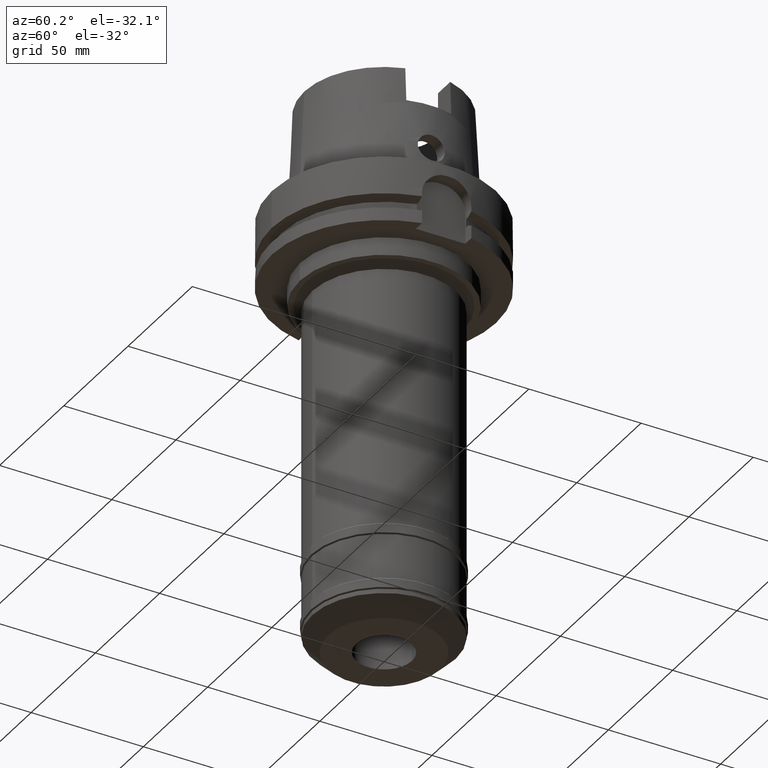
[diagram: clean part render]
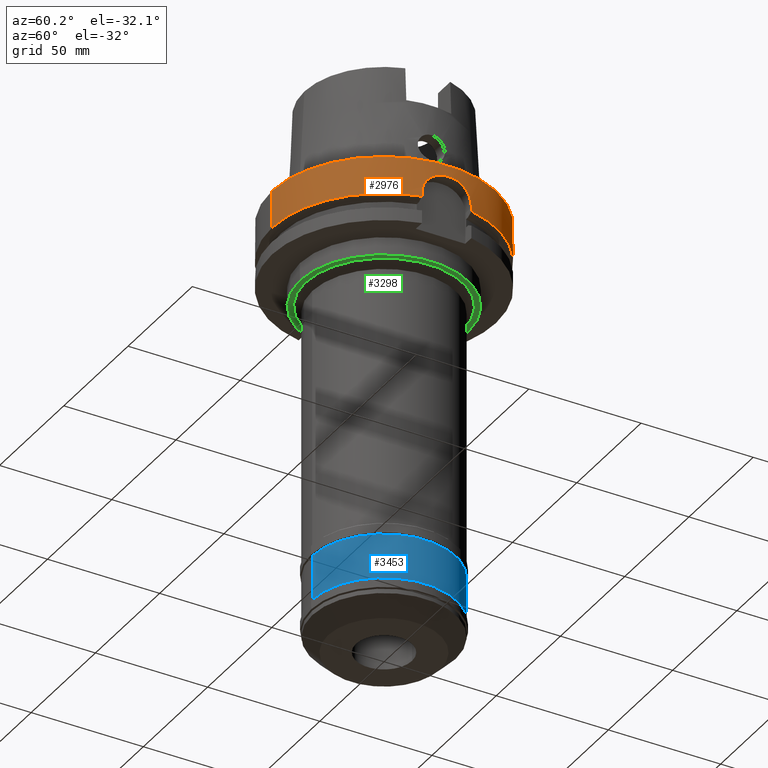
[diagram: same view with three faces highlighted in distinct colors, each labeled with its STEP entity id]
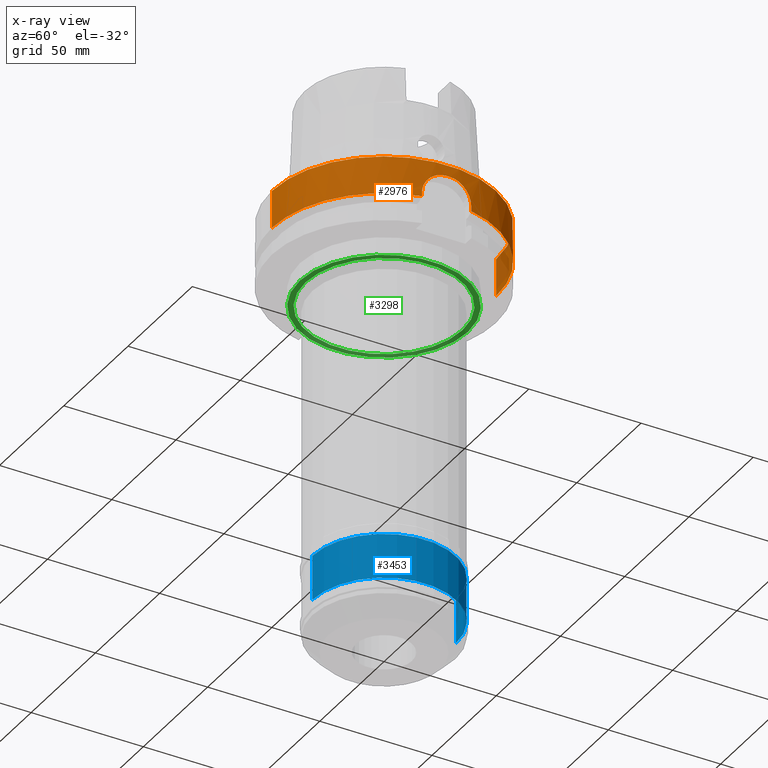
[diagram: x-ray of the same camera — body ghosted, the three highlighted faces saturated]
A machine part, auxiliary view with three faces highlighted in distinct colors.
The next image is the same camera in x-ray (body ghosted, the three faces saturated) — at least one of them is partly hidden behind the body in this view.
Their STEP definitions:

[orange] entity #2976 — the highlighted cylindrical surface (partial cylindrical patch) has radius 50 mm, axis along (0, 0, 1).
#350=CARTESIAN_POINT('',(0.E0,0.E0,0.E0));
#351=DIRECTION('',(0.E0,0.E0,-1.E0));
#352=DIRECTION('',(0.E0,1.E0,0.E0));
#353=AXIS2_PLACEMENT_3D('',#350,#351,#352);
#381=DIRECTION('',(0.E0,2.969006079282E-14,-1.E0));
#382=VECTOR('',#381,1.675240473581E1);
#383=CARTESIAN_POINT('',(0.E0,-5.E1,0.E0));
#384=LINE('',#383,#382);
#798=CARTESIAN_POINT('',(0.E0,0.E0,-1.675240473581E1));
#799=DIRECTION('',(0.E0,0.E0,1.E0));
#800=DIRECTION('',(0.E0,-1.E0,0.E0));
#801=AXIS2_PLACEMENT_3D('',#798,#799,#800);
#816=CARTESIAN_POINT('',(4.998999899980E1,-1.E0,-5.E0));
#817=CARTESIAN_POINT('',(4.997503460282E1,-1.748070190201E0,-5.E0));
#818=CARTESIAN_POINT('',(4.991285883830E1,-3.210048101398E0,-5.162508306837E0));
#819=CARTESIAN_POINT('',(4.972639841187E1,-5.358520384944E0,-5.904792639431E0));
#820=CARTESIAN_POINT('',(4.947876344009E1,-7.274062207197E0,-7.105041065339E0));
#821=CARTESIAN_POINT('',(4.921271411627E1,-8.876558450623E0,-8.703010222550E0));
#822=CARTESIAN_POINT('',(4.897599990577E1,-1.008359438901E1,-1.061591949854E1));
#823=CARTESIAN_POINT('',(4.881260139375E1,-1.083536034362E1,-1.277572651514E1));
#824=CARTESIAN_POINT('',(4.877499359303E1,-1.1E1,-1.424604735720E1));
#825=CARTESIAN_POINT('',(4.877499359303E1,-1.1E1,-1.5E1));
#830=DIRECTION('',(-5.027793947017E-13,6.690209687563E-14,-1.E0));
#831=VECTOR('',#830,1.752404735809E0);
#832=CARTESIAN_POINT('',(4.877499359303E1,-1.1E1,-1.5E1));
#833=LINE('',#832,#831);
#837=DIRECTION('',(0.E0,-2.969006079282E-14,-1.E0));
#838=VECTOR('',#837,1.675240473581E1);
#839=CARTESIAN_POINT('',(0.E0,5.E1,0.E0));
#840=LINE('',#839,#838);
#844=DIRECTION('',(4.946700496259E-13,7.095676941355E-14,1.E0));
#845=VECTOR('',#844,1.752404735809E0);
#846=CARTESIAN_POINT('',(4.877499359303E1,1.1E1,-1.675240473581E1));
#847=LINE('',#846,#845);
#851=CARTESIAN_POINT('',(4.877499359303E1,1.1E1,-1.5E1));
#852=CARTESIAN_POINT('',(4.877499359303E1,1.1E1,-1.425405366469E1));
#853=CARTESIAN_POINT('',(4.881182119002E1,1.083873753341E1,-1.279702685514E1));
#854=CARTESIAN_POINT('',(4.897268272064E1,1.009923672888E1,-1.065074173612E1));
#855=CARTESIAN_POINT('',(4.920740341221E1,8.905300469171E0,-8.739736716407E0));
#856=CARTESIAN_POINT('',(4.947305233912E1,7.312272479331E0,-7.135461040488E0));
#857=CARTESIAN_POINT('',(4.972221230915E1,5.397924792666E0,-5.922868696542E0));
#858=CARTESIAN_POINT('',(4.991139941789E1,3.236935530369E0,-5.167019104562E0));
#859=CARTESIAN_POINT('',(4.997482707449E1,1.758444531014E0,-5.E0));
#860=CARTESIAN_POINT('',(4.998999899980E1,1.E0,-5.E0));
#865=CARTESIAN_POINT('',(0.E0,0.E0,-5.E0));
#866=DIRECTION('',(0.E0,0.E0,1.E0));
#867=DIRECTION('',(9.997999799960E-1,-2.E-2,0.E0));
#868=AXIS2_PLACEMENT_3D('',#865,#866,#867);
#1113=CARTESIAN_POINT('',(4.877499359303E1,1.1E1,-1.675240473581E1));
#1118=CARTESIAN_POINT('',(0.E0,0.E0,-1.675240473581E1));
#1119=DIRECTION('',(0.E0,0.E0,1.E0));
#1120=DIRECTION('',(9.754998718606E-1,2.2E-1,0.E0));
#1121=AXIS2_PLACEMENT_3D('',#1118,#1119,#1120);
#2162=CARTESIAN_POINT('',(0.E0,-5.E1,0.E0));
#2163=CARTESIAN_POINT('',(0.E0,5.E1,0.E0));
#2164=VERTEX_POINT('',#2162);
#2165=VERTEX_POINT('',#2163);
#2170=CARTESIAN_POINT('',(0.E0,5.E1,-1.675240473581E1));
#2171=VERTEX_POINT('',#2170);
#2172=CARTESIAN_POINT('',(0.E0,-5.E1,-1.675240473581E1));
#2173=VERTEX_POINT('',#2172);
#2339=CARTESIAN_POINT('',(4.877499359303E1,-1.1E1,-1.675240473581E1));
#2340=VERTEX_POINT('',#2339);
#2348=VERTEX_POINT('',#1113);
#2401=CARTESIAN_POINT('',(4.877499359303E1,-1.1E1,-1.5E1));
#2402=VERTEX_POINT('',#2401);
#2405=CARTESIAN_POINT('',(4.998999899980E1,-1.E0,-5.E0));
#2406=CARTESIAN_POINT('',(4.998999899980E1,1.E0,-5.E0));
#2407=VERTEX_POINT('',#2405);
#2408=VERTEX_POINT('',#2406);
#2409=CARTESIAN_POINT('',(4.877499359303E1,1.1E1,-1.5E1));
#2410=VERTEX_POINT('',#2409);
#2953=CARTESIAN_POINT('',(0.E0,0.E0,-2.0725E2));
#2954=DIRECTION('',(0.E0,0.E0,1.E0));
#2955=DIRECTION('',(0.E0,1.E0,0.E0));
#2956=AXIS2_PLACEMENT_3D('',#2953,#2954,#2955);
#2957=CYLINDRICAL_SURFACE('',#2956,5.E1);
#2959=ORIENTED_EDGE('',*,*,#2958,.F.);
#2961=ORIENTED_EDGE('',*,*,#2960,.T.);
#2963=ORIENTED_EDGE('',*,*,#2962,.T.);
#2964=ORIENTED_EDGE('',*,*,#2942,.F.);
#2965=ORIENTED_EDGE('',*,*,#2657,.F.);
#2966=ORIENTED_EDGE('',*,*,#2636,.F.);
#2967=ORIENTED_EDGE('',*,*,#2654,.T.);
#2969=ORIENTED_EDGE('',*,*,#2968,.F.);
#2971=ORIENTED_EDGE('',*,*,#2970,.T.);
#2973=ORIENTED_EDGE('',*,*,#2972,.T.);
#2974=EDGE_LOOP('',(#2959,#2961,#2963,#2964,#2965,#2966,#2967,#2969,#2971,
#2973));
#2975=FACE_OUTER_BOUND('',#2974,.F.);
#354=CIRCLE('',#353,5.E1);
#802=CIRCLE('',#801,5.E1);
#826=B_SPLINE_CURVE_WITH_KNOTS('',3,(#816,#817,#818,#819,#820,#821,#822,#823,
#824,#825),.UNSPECIFIED.,.F.,.F.,(4,1,1,1,1,1,1,4),(0.E0,1.428571428571E-1,
2.857142857143E-1,4.285714285714E-1,5.714285714286E-1,7.142857142857E-1,
8.571428571429E-1,1.E0),.UNSPECIFIED.);
#861=B_SPLINE_CURVE_WITH_KNOTS('',3,(#851,#852,#853,#854,#855,#856,#857,#858,
#859,#860),.UNSPECIFIED.,.F.,.F.,(4,1,1,1,1,1,1,4),(0.E0,1.428571428571E-1,
2.857142857143E-1,4.285714285714E-1,5.714285714286E-1,7.142857142857E-1,
8.571428571429E-1,1.E0),.UNSPECIFIED.);
#869=CIRCLE('',#868,5.E1);
#1122=CIRCLE('',#1121,5.E1);
#2636=EDGE_CURVE('',#2165,#2164,#354,.T.);
#2654=EDGE_CURVE('',#2165,#2171,#840,.T.);
#2657=EDGE_CURVE('',#2164,#2173,#384,.T.);
#2942=EDGE_CURVE('',#2173,#2340,#802,.T.);
#2958=EDGE_CURVE('',#2407,#2408,#869,.T.);
#2960=EDGE_CURVE('',#2407,#2402,#826,.T.);
#2962=EDGE_CURVE('',#2402,#2340,#833,.T.);
#2968=EDGE_CURVE('',#2348,#2171,#1122,.T.);
#2970=EDGE_CURVE('',#2348,#2410,#847,.T.);
#2972=EDGE_CURVE('',#2410,#2408,#861,.T.);
#2976=ADVANCED_FACE('',(#2975),#2957,.T.);

[blue] entity #3453 — the highlighted cylindrical surface (partial cylindrical patch) has radius 32 mm, axis along (0, 0, 1).
#1456=CARTESIAN_POINT('',(0.E0,0.E0,-1.61E2));
#1457=DIRECTION('',(0.E0,0.E0,-1.E0));
#1458=DIRECTION('',(0.E0,1.E0,0.E0));
#1459=AXIS2_PLACEMENT_3D('',#1456,#1457,#1458);
#1472=DIRECTION('',(0.E0,0.E0,-1.E0));
#1473=VECTOR('',#1472,2.E1);
#1474=CARTESIAN_POINT('',(0.E0,3.2E1,-1.61E2));
#1475=LINE('',#1474,#1473);
#1479=DIRECTION('',(0.E0,0.E0,-1.E0));
#1480=VECTOR('',#1479,2.E1);
#1481=CARTESIAN_POINT('',(0.E0,-3.2E1,-1.61E2));
#1482=LINE('',#1481,#1480);
#1524=CARTESIAN_POINT('',(0.E0,0.E0,-1.81E2));
#1525=DIRECTION('',(0.E0,0.E0,1.E0));
#1526=DIRECTION('',(0.E0,-1.E0,0.E0));
#1527=AXIS2_PLACEMENT_3D('',#1524,#1525,#1526);
#2250=CARTESIAN_POINT('',(0.E0,3.2E1,-1.61E2));
#2251=VERTEX_POINT('',#2250);
#2252=CARTESIAN_POINT('',(0.E0,-3.2E1,-1.61E2));
#2253=VERTEX_POINT('',#2252);
#2254=CARTESIAN_POINT('',(0.E0,3.2E1,-1.81E2));
#2255=VERTEX_POINT('',#2254);
#2256=CARTESIAN_POINT('',(0.E0,-3.2E1,-1.81E2));
#2257=VERTEX_POINT('',#2256);
#3439=CARTESIAN_POINT('',(0.E0,0.E0,-2.0725E2));
#3440=DIRECTION('',(0.E0,0.E0,1.E0));
#3441=DIRECTION('',(0.E0,1.E0,0.E0));
#3442=AXIS2_PLACEMENT_3D('',#3439,#3440,#3441);
#3443=CYLINDRICAL_SURFACE('',#3442,3.2E1);
#3445=ORIENTED_EDGE('',*,*,#3444,.T.);
#3447=ORIENTED_EDGE('',*,*,#3446,.F.);
#3449=ORIENTED_EDGE('',*,*,#3448,.F.);
#3450=ORIENTED_EDGE('',*,*,#3432,.F.);
#3451=EDGE_LOOP('',(#3445,#3447,#3449,#3450));
#3452=FACE_OUTER_BOUND('',#3451,.F.);
#1460=CIRCLE('',#1459,3.2E1);
#1528=CIRCLE('',#1527,3.2E1);
#3432=EDGE_CURVE('',#2251,#2253,#1460,.T.);
#3444=EDGE_CURVE('',#2251,#2255,#1475,.T.);
#3446=EDGE_CURVE('',#2257,#2255,#1528,.T.);
#3448=EDGE_CURVE('',#2253,#2257,#1482,.T.);
#3453=ADVANCED_FACE('',(#3452),#3443,.T.);

[green] entity #3298 — the highlighted planar face has unit normal (0, 0, 1).
#1290=CARTESIAN_POINT('',(0.E0,0.E0,-3.7E1));
#1291=DIRECTION('',(0.E0,0.E0,1.E0));
#1292=DIRECTION('',(0.E0,-1.E0,0.E0));
#1293=AXIS2_PLACEMENT_3D('',#1290,#1291,#1292);
#1298=CARTESIAN_POINT('',(0.E0,0.E0,-3.7E1));
#1299=DIRECTION('',(0.E0,0.E0,1.E0));
#1300=DIRECTION('',(0.E0,1.E0,0.E0));
#1301=AXIS2_PLACEMENT_3D('',#1298,#1299,#1300);
#1306=CARTESIAN_POINT('',(0.E0,0.E0,-3.7E1));
#1307=DIRECTION('',(0.E0,0.E0,-1.E0));
#1308=DIRECTION('',(0.E0,-1.E0,0.E0));
#1309=AXIS2_PLACEMENT_3D('',#1306,#1307,#1308);
#1314=CARTESIAN_POINT('',(0.E0,0.E0,-3.7E1));
#1315=DIRECTION('',(0.E0,0.E0,-1.E0));
#1316=DIRECTION('',(0.E0,1.E0,0.E0));
#1317=AXIS2_PLACEMENT_3D('',#1314,#1315,#1316);
#2226=CARTESIAN_POINT('',(0.E0,3.75E1,-3.7E1));
#2227=VERTEX_POINT('',#2226);
#2228=CARTESIAN_POINT('',(0.E0,-3.75E1,-3.7E1));
#2229=VERTEX_POINT('',#2228);
#2230=CARTESIAN_POINT('',(0.E0,-3.5E1,-3.7E1));
#2231=CARTESIAN_POINT('',(0.E0,3.5E1,-3.7E1));
#2232=VERTEX_POINT('',#2230);
#2233=VERTEX_POINT('',#2231);
#3283=CARTESIAN_POINT('',(0.E0,0.E0,-3.7E1));
#3284=DIRECTION('',(0.E0,0.E0,1.E0));
#3285=DIRECTION('',(0.E0,1.E0,0.E0));
#3286=AXIS2_PLACEMENT_3D('',#3283,#3284,#3285);
#3287=PLANE('',#3286);
#3288=ORIENTED_EDGE('',*,*,#3276,.T.);
#3289=ORIENTED_EDGE('',*,*,#3265,.T.);
#3290=EDGE_LOOP('',(#3288,#3289));
#3291=FACE_OUTER_BOUND('',#3290,.F.);
#3293=ORIENTED_EDGE('',*,*,#3292,.T.);
#3295=ORIENTED_EDGE('',*,*,#3294,.T.);
#3296=EDGE_LOOP('',(#3293,#3295));
#3297=FACE_BOUND('',#3296,.F.);
#1294=CIRCLE('',#1293,3.75E1);
#1302=CIRCLE('',#1301,3.75E1);
#1310=CIRCLE('',#1309,3.5E1);
#1318=CIRCLE('',#1317,3.5E1);
#3265=EDGE_CURVE('',#2227,#2229,#1302,.T.);
#3276=EDGE_CURVE('',#2229,#2227,#1294,.T.);
#3292=EDGE_CURVE('',#2232,#2233,#1310,.T.);
#3294=EDGE_CURVE('',#2233,#2232,#1318,.T.);
#3298=ADVANCED_FACE('',(#3291,#3297),#3287,.F.);